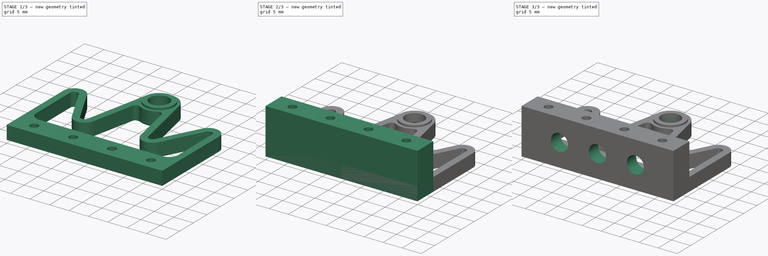
[diagram: build sequence overview — one tinted view per stage of 3, left to right]
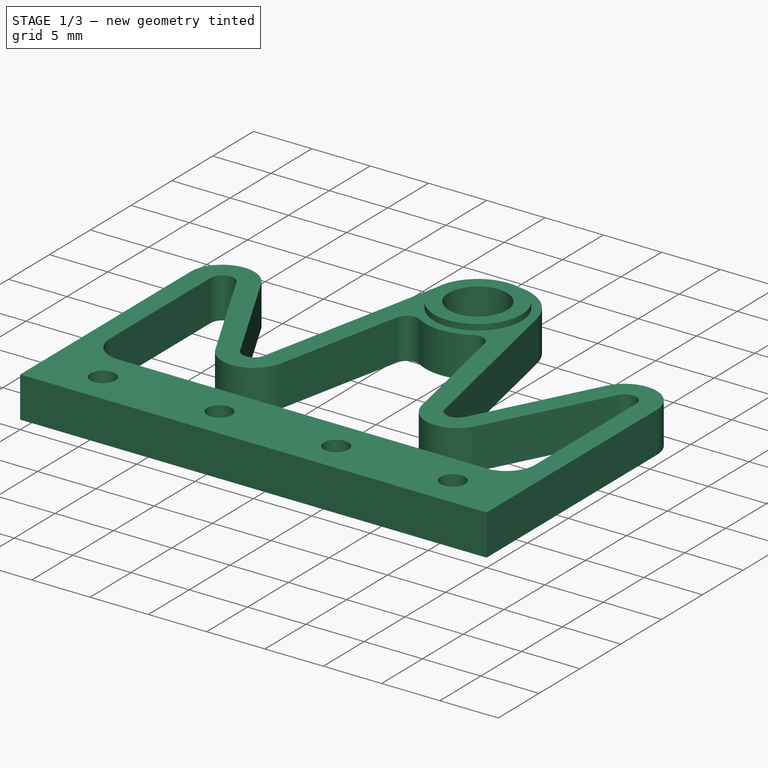
[diagram: stage 1 of 3 — iso view after this stage's code; geometry added in this stage tinted green]
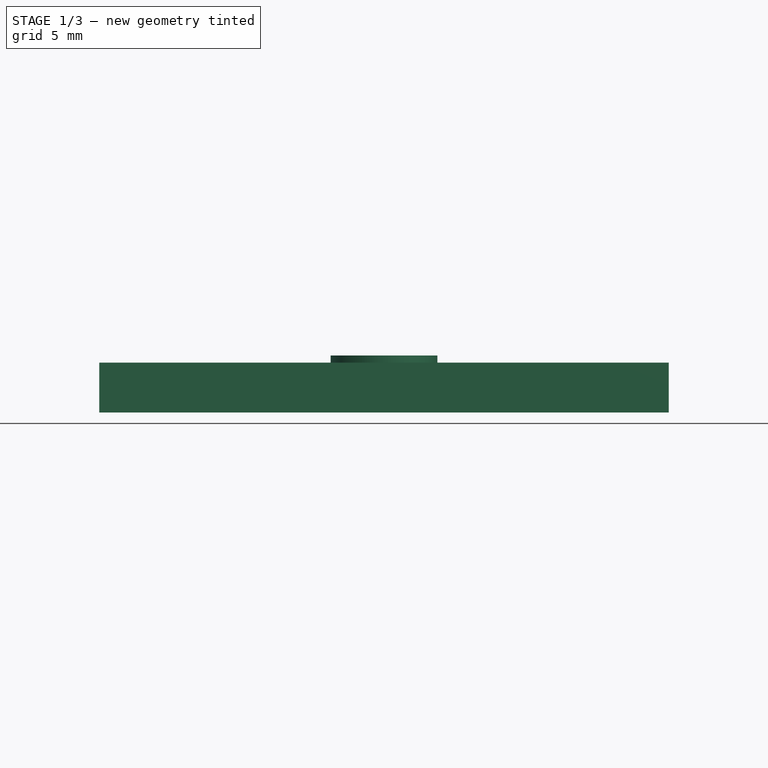
[diagram: stage 1 of 3 — front view after this stage's code; geometry added in this stage tinted green]
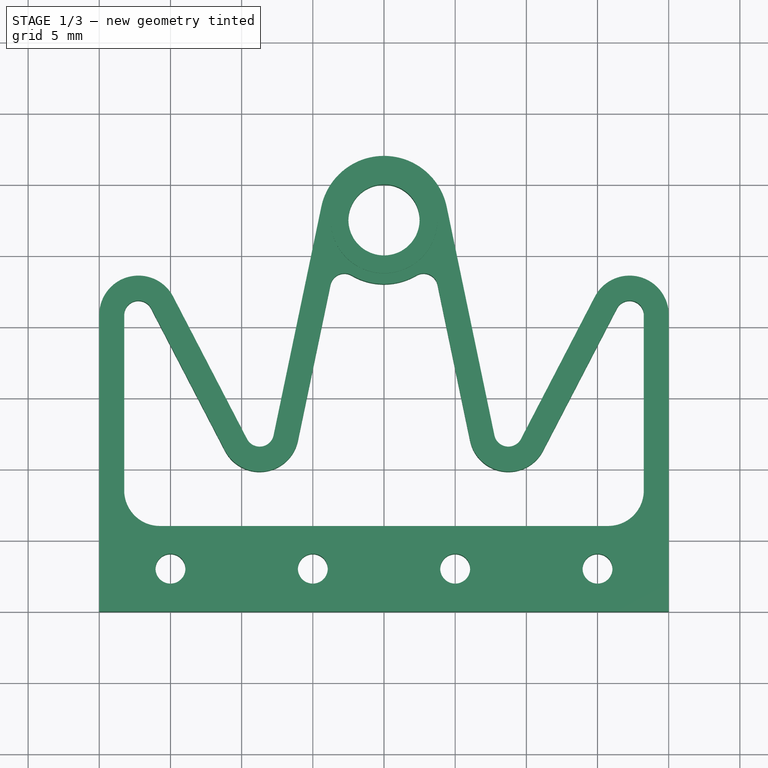
[diagram: stage 1 of 3 — top view after this stage's code; geometry added in this stage tinted green]
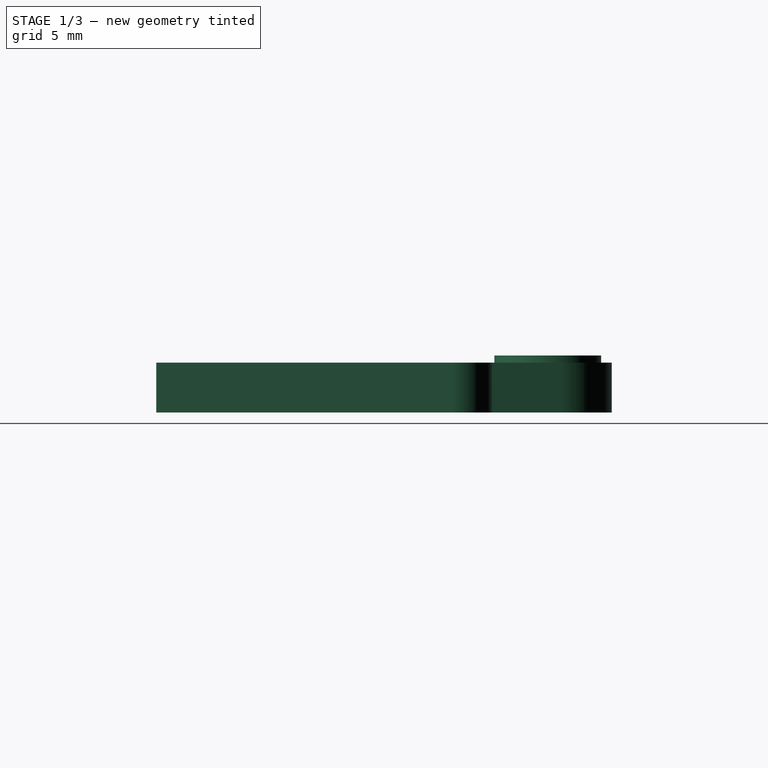
[diagram: stage 1 of 3 — right view after this stage's code; geometry added in this stage tinted green]
FCSTD DOCUMENT  (FreeCAD 0.19R23141 (Git))
Label: compliant_wheel
License: All rights reserved
LicenseURL: http://en.wikipedia.org/wiki/All_rights_reserved
objects: Sketcher::SketchObject×4, PartDesign::Pad×3, PartDesign::Body×2, PartDesign::Chamfer×2, PartDesign::Draft×1, PartDesign::Hole×1
note: 20 computed .brp shape members not serialized (recipe doc carries the construction recipe); baked Part::Feature solids carry a one-line shape summary decoded from their .brp

FEATURE [Sketcher::SketchObject] Sketch
  MapMode = 5
  Support = -> [XY_Plane]
  expr: Constraints[3] = 26 + 1.5
  sketch-geometry (46):
    g0: LineSegment StartX=0 StartY=0 StartZ=0 EndX=-20 EndY=0 EndZ=0
    g1: Circle CenterX=0 CenterY=27.5 CenterZ=0 NormalX=0 NormalY=0 NormalZ=1 AngleXU=0 Radius=2.5
    g2: LineSegment StartX=-7.75607 StartY=12.3702 StartZ=0 EndX=-4.405 EndY=28.4197 EndZ=0
    g3: ArcOfCircle CenterX=0 CenterY=27.5 CenterZ=0 NormalX=0 NormalY=0 NormalZ=1 AngleXU=0 Radius=4.5 StartAngle=0.205839 EndAngle=2.93575
    g4: LineSegment StartX=4.405 StartY=28.4197 StartZ=0 EndX=7.75607 EndY=12.3702 EndZ=0
    g5: LineSegment StartX=20 StartY=0 StartZ=0 EndX=0 EndY=0 EndZ=0
    g6: ArcOfCircle CenterX=0 CenterY=27.5 CenterZ=0 NormalX=0 NormalY=0 NormalZ=1 AngleXU=0 Radius=4.5 StartAngle=4.18274 EndAngle=5.24204
    g7: ArcOfCircle CenterX=2.77877 CenterY=22.7536 CenterZ=0 NormalX=0 NormalY=0 NormalZ=1 AngleXU=0 Radius=1 StartAngle=0.205839 EndAngle=2.10045
    g8: LineSegment StartX=3.75766 StartY=22.958 StartZ=0 EndX=6.04301 EndY=12.0126 EndZ=0
    g9: LineSegment [constr] StartX=-2.27354 StartY=23.6166 StartZ=0 EndX=2.27354 EndY=23.6166 EndZ=0
    g10: ArcOfCircle CenterX=-2.77877 CenterY=22.7536 CenterZ=0 NormalX=0 NormalY=0 NormalZ=1 AngleXU=0 Radius=1 StartAngle=1.04115 EndAngle=2.93575
    g11: LineSegment StartX=-3.75766 StartY=22.958 StartZ=0 EndX=-6.04301 EndY=12.0126 EndZ=0
    g12: LineSegment StartX=-9.62251 StartY=12.1139 StartZ=0 EndX=-14.8092 EndY=22.1059 EndZ=0
    g13: LineSegment StartX=-20 StartY=20.8389 StartZ=0 EndX=-20 EndY=0 EndZ=0
    g14: LineSegment StartX=-11.1757 StartY=11.3077 StartZ=0 EndX=-16.3625 EndY=21.2996 EndZ=0
    g15: LineSegment StartX=-18.25 StartY=20.8389 StartZ=0 EndX=-18.25 EndY=8.5 EndZ=0
    g16: LineSegment StartX=-15.75 StartY=6 StartZ=0 EndX=15.75 EndY=6 EndZ=0
    g17: LineSegment StartX=18.25 StartY=8.5 StartZ=0 EndX=18.25 EndY=20.8389 EndZ=0
    g18: LineSegment StartX=16.3625 StartY=21.2996 StartZ=0 EndX=11.1757 EndY=11.3077 EndZ=0
    g19: LineSegment StartX=9.62251 StartY=12.1139 StartZ=0 EndX=14.8092 EndY=22.1059 EndZ=0
    g20: LineSegment StartX=20 StartY=20.8389 StartZ=0 EndX=20 EndY=0 EndZ=0
    g21: ArcOfCircle CenterX=-17.25 CenterY=20.8389 CenterZ=0 NormalX=0 NormalY=0 NormalZ=1 AngleXU=0 Radius=2.75 StartAngle=0.478803 EndAngle=3.14159
    g22: ArcOfCircle CenterX=-8.73496 CenterY=12.5746 CenterZ=0 NormalX=0 NormalY=0 NormalZ=1 AngleXU=0 Radius=2.75 StartAngle=3.6204 EndAngle=6.07735
    g23: ArcOfCircle CenterX=8.73496 CenterY=12.5746 CenterZ=0 NormalX=0 NormalY=0 NormalZ=1 AngleXU=0 Radius=2.75 StartAngle=3.34743 EndAngle=5.80438
    g24: ArcOfCircle CenterX=17.25 CenterY=20.8389 CenterZ=0 NormalX=0 NormalY=0 NormalZ=1 AngleXU=0 Radius=2.75 StartAngle=1e-16 EndAngle=2.66279
    g25: ArcOfCircle CenterX=8.73496 CenterY=12.5746 CenterZ=0 NormalX=0 NormalY=0 NormalZ=1 AngleXU=0 Radius=1 StartAngle=3.34743 EndAngle=5.80438
    g26: ArcOfCircle CenterX=-8.73496 CenterY=12.5746 CenterZ=0 NormalX=0 NormalY=0 NormalZ=1 AngleXU=0 Radius=1 StartAngle=3.6204 EndAngle=6.07735
    g27: ArcOfCircle CenterX=-17.25 CenterY=20.8389 CenterZ=0 NormalX=0 NormalY=0 NormalZ=1 AngleXU=0 Radius=1 StartAngle=0.478803 EndAngle=3.14159
    g28: ArcOfCircle CenterX=17.25 CenterY=20.8389 CenterZ=0 NormalX=0 NormalY=0 NormalZ=1 AngleXU=0 Radius=1 StartAngle=3e-16 EndAngle=2.66279
    g29: LineSegment [constr] StartX=-17.25 StartY=20.8389 StartZ=0 EndX=0 EndY=20.8389 EndZ=0
    g30: LineSegment [constr] StartX=17.25 StartY=20.8389 StartZ=0 EndX=0 EndY=20.8389 EndZ=0
    g31: LineSegment [constr] StartX=-8.73496 StartY=12.5746 StartZ=0 EndX=0 EndY=12.5746 EndZ=0
    g32: LineSegment [constr] StartX=8.73496 StartY=12.5746 StartZ=0 EndX=0 EndY=12.5746 EndZ=0
    g33: ArcOfCircle CenterX=-15.75 CenterY=8.5 CenterZ=0 NormalX=0 NormalY=0 NormalZ=1 AngleXU=0 Radius=2.5 StartAngle=3.14159 EndAngle=4.71239
    g34: ArcOfCircle CenterX=15.75 CenterY=8.5 CenterZ=0 NormalX=0 NormalY=0 NormalZ=1 AngleXU=0 Radius=2.5 StartAngle=4.71239 EndAngle=6.28319
    g35: LineSegment [constr] StartX=0 StartY=3 StartZ=0 EndX=-5 EndY=3 EndZ=0
    g36: LineSegment [constr] StartX=-5 StartY=3 StartZ=0 EndX=-10 EndY=3 EndZ=0
    g37: LineSegment [constr] StartX=-10 StartY=3 StartZ=0 EndX=-15 EndY=3 EndZ=0
    g38: LineSegment [constr] StartX=0 StartY=3 StartZ=0 EndX=5 EndY=3 EndZ=0
    g39: LineSegment [constr] StartX=5 StartY=3 StartZ=0 EndX=10 EndY=3 EndZ=0
    g40: LineSegment [constr] StartX=10 StartY=3 StartZ=0 EndX=15 EndY=3 EndZ=0
    g41: Circle CenterX=-15 CenterY=3 CenterZ=0 NormalX=0 NormalY=0 NormalZ=1 AngleXU=0 Radius=1.05
    g42: Circle CenterX=-5 CenterY=3 CenterZ=0 NormalX=0 NormalY=0 NormalZ=1 AngleXU=0 Radius=1.05
    g43: Circle CenterX=5 CenterY=3 CenterZ=0 NormalX=0 NormalY=0 NormalZ=1 AngleXU=0 Radius=1.05
    g44: Circle CenterX=15 CenterY=3 CenterZ=0 NormalX=0 NormalY=0 NormalZ=1 AngleXU=0 Radius=1.05
    g45: Circle [constr] CenterX=0 CenterY=27.5 CenterZ=0 NormalX=0 NormalY=0 NormalZ=1 AngleXU=0 Radius=12.25
  constraints (108):
    c: Coincident(g-1,g0)
    c: PointOnObject(g0,g-1)
    c: PointOnObject(g1,g-2)
    c: DistanceY(g0,g1) = 27.5
    c: Coincident(g3,g1)
    c: Tangent(g3,g2) = 1.5708
    c: Tangent(g3,g4) = 1.5708
    c: PointOnObject(g5,g-1)
    c: Coincident(g5,g0)
    c: Equal(g5,g0)
    c: Coincident(g6,g1)
    c: Tangent(g7,g6) = 1.5708
    c: Equal(g6,g3)
    c: Tangent(g7,g8) = 1.5708
    c: Diameter(g6) = 9
    c: Coincident(g9,g6)
    c: Coincident(g9,g6)
    c: Horizontal(g9)
    c: Tangent(g10,g11) = -1.5708
    c: Tangent(g10,g6) = 1.5708
    c: Equal(g10,g7)
    c: Diameter(g10) = 2
    c: Coincident(g13,g0)
    c: Horizontal(g16)
    c: Coincident(g20,g5)
    c: Tangent(g13,g21) = -1.5708
    c: Tangent(g12,g21) = -1.5708
    c: Tangent(g14,g22) = 1.5708
    c: Tangent(g11,g22) = 1.5708
    c: Tangent(g8,g23) = -1.5708
    c: Tangent(g18,g23) = 1.5708
    c: Tangent(g19,g24) = 1.5708
    c: Tangent(g20,g24) = 1.5708
    c: Tangent(g4,g25) = -1.5708
    c: Tangent(g19,g25) = -1.5708
    c: Tangent(g12,g26) = 1.5708
    c: Tangent(g2,g26) = -1.5708
    c: Tangent(g15,g27) = -1.5708
    c: Tangent(g14,g27) = -1.5708
    c: Tangent(g18,g28) = -1.5708
    c: Tangent(g17,g28) = -1.5708
    c: Equal(g7,g28)
    c: Equal(g28,g26)
    c: Equal(g26,g27)
    c: Equal(g27,g25)
    c: Diameter(g21) = 5.5
    c: Equal(g21,g22)
    c: Equal(g21,g23)
    c: Equal(g21,g24)
    c: Parallel(g8,g4)
    c: Parallel(g17,g20)
    c: Parallel(g15,g13)
    c: Parallel(g11,g2)
    c: Coincident(g21,g27)
    c: Coincident(g26,g22)
    c: Coincident(g24,g28)
    c: Coincident(g25,g23)
    c: Equal(g15,g17)
    c: Coincident(g29,g21)
    c: PointOnObject(g29,g-2)
    c: Horizontal(g29)
    c: Coincident(g30,g24)
    c: Coincident(g30,g29)
    c: Horizontal(g30)
    c: Coincident(g31,g22)
    c: PointOnObject(g31,g-2)
    c: Coincident(g32,g23)
    c: Coincident(g32,g31)
    c: Horizontal(g32)
    c: Horizontal(g31)
    c: Vertical(g13)
    c: Tangent(g16,g33) = -1.5708
    c: Tangent(g15,g33) = -1.5708
    c: Tangent(g16,g34) = -1.5708
    c: Tangent(g17,g34) = -1.5708
    c: DistanceY(g0,g16) = 6
    c: PointOnObject(g35,g-2)
    c: Horizontal(g35)
    c: Coincident(g35,g36)
    c: Coincident(g36,g37)
    c: Horizontal(g37)
    c: Coincident(g35,g38)
    c: Horizontal(g38)
    c: Coincident(g38,g39)
    c: Horizontal(g39)
    c: Coincident(g39,g40)
    c: Horizontal(g40)
    c: Horizontal(g36)
    c: Equal(g36,g37)
    c: Equal(g37,g35)
    c: Equal(g35,g38)
    c: Equal(g38,g39)
    c: Equal(g39,g40)
    c: DistanceY(g0,g37) = 3
    c: DistanceX(g35,g35) = 5
    c: Coincident(g41,g37)
    c: Coincident(g42,g35)
    c: Coincident(g43,g38)
    c: Coincident(g44,g40)
    c: Equal(g44,g43)
    c: Equal(g43,g42)
    c: Equal(g42,g41)
    c: Diameter(g41) = 2.1
    c: DistanceX(g0,g5) = 40
    c: Coincident(g45,g1)
    c: Diameter(g45) = 24.5
    c: Equal(g34,g33)
    c: Diameter(g33) = 5
FEATURE [PartDesign::Pad] Pad
  Direction = (1,1,1)
  Length = 3.5
  Length2 = 100
  Profile = -> Sketch
  Type = 0
FEATURE [Sketcher::SketchObject] Sketch001
  ExternalGeometry = -> [Pad]
  MapMode = 5
  Placement = pos=(0,0,3.5) rot=(0,0,1;0rad)
  Support = -> [Pad]
  sketch-geometry (2):
    g0: Circle CenterX=0 CenterY=27.5 CenterZ=0 NormalX=0 NormalY=0 NormalZ=1 AngleXU=0 Radius=2.5
    g1: Circle CenterX=0 CenterY=27.5 CenterZ=0 NormalX=0 NormalY=0 NormalZ=1 AngleXU=0 Radius=3.75
  constraints (4):
    c: Coincident(g0,g-3)
    c: Coincident(g1,g0)
    c: Diameter(g1) = 7.5
    c: Radius(g0) = 2.5
FEATURE [PartDesign::Pad] Pad001
  BaseFeature = -> Pad
  Direction = (1,1,1)
  Length = 0.5
  Length2 = 100
  Profile = -> Sketch001
  Type = 0
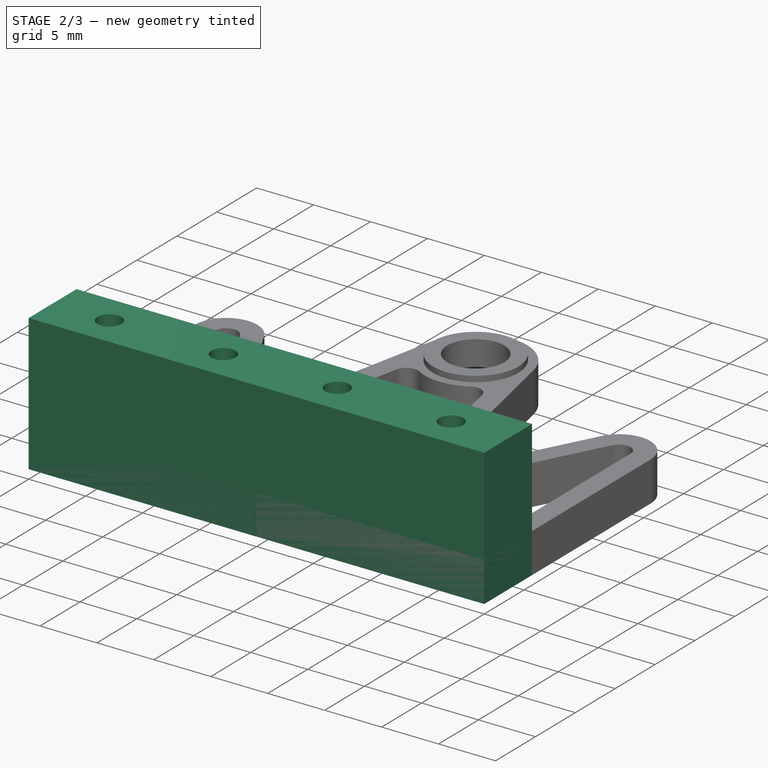
[diagram: stage 2 of 3 — iso view after this stage's code; geometry added in this stage tinted green]
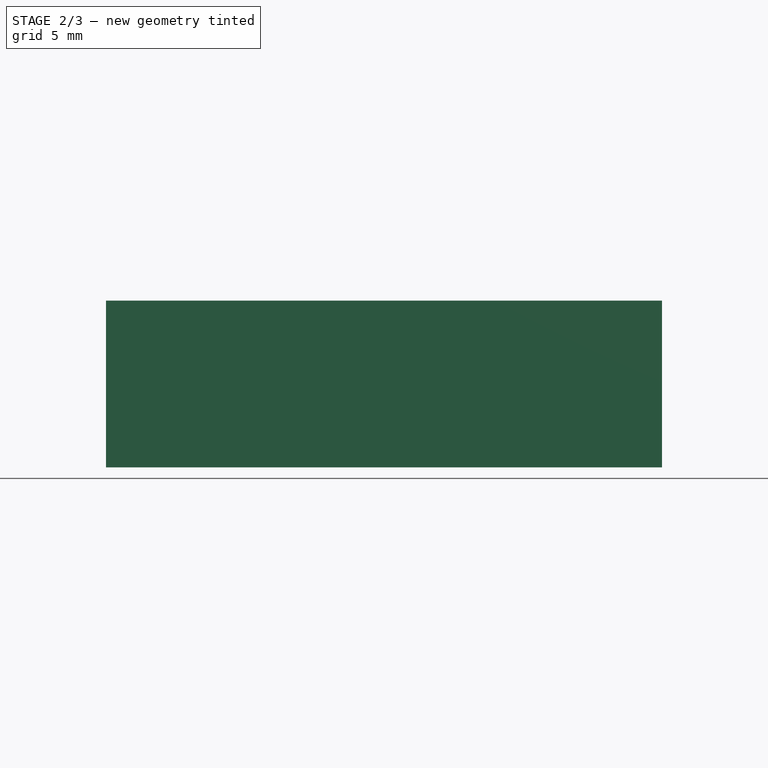
[diagram: stage 2 of 3 — front view after this stage's code; geometry added in this stage tinted green]
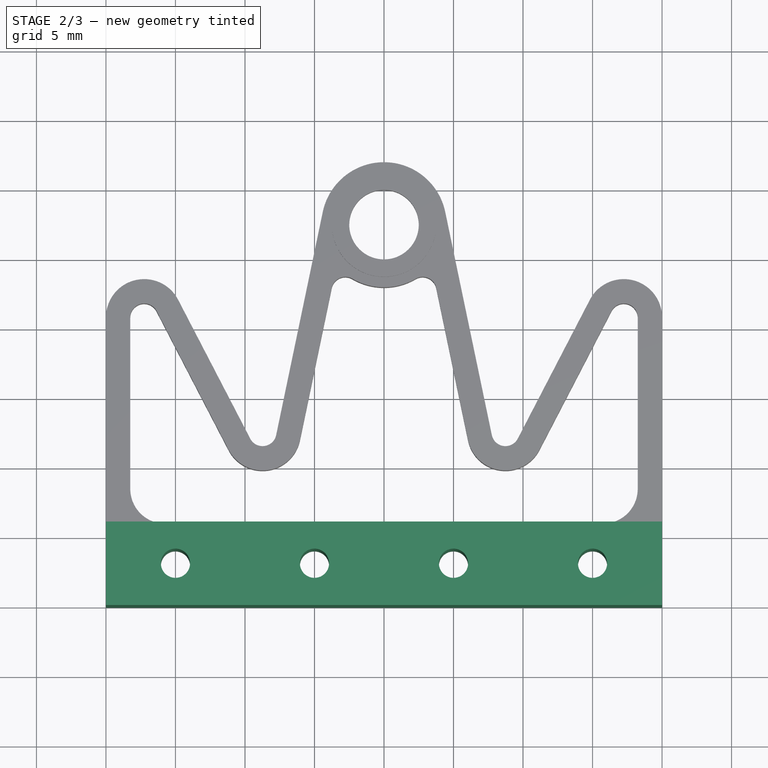
[diagram: stage 2 of 3 — top view after this stage's code; geometry added in this stage tinted green]
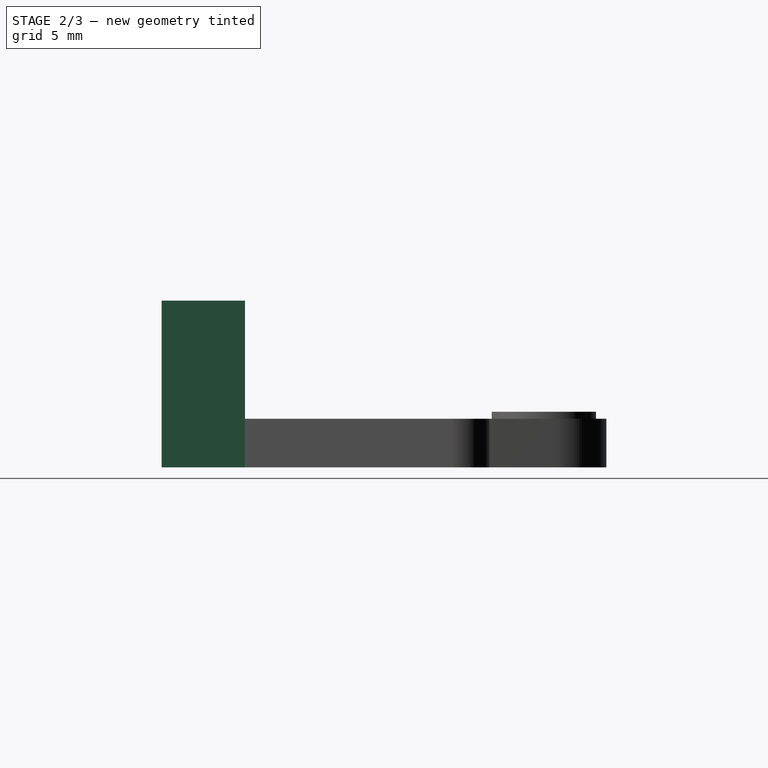
[diagram: stage 2 of 3 — right view after this stage's code; geometry added in this stage tinted green]
FEATURE [Sketcher::SketchObject] Sketch002
  MapMode = 5
  Support = -> [XY_Plane001]
  sketch-geometry (16):
    g0: LineSegment StartX=-20 StartY=0 StartZ=0 EndX=20 EndY=0 EndZ=0
    g1: LineSegment StartX=20 StartY=0 StartZ=0 EndX=20 EndY=6 EndZ=0
    g2: LineSegment StartX=20 StartY=6 StartZ=0 EndX=-20 EndY=6 EndZ=0
    g3: LineSegment StartX=-20 StartY=6 StartZ=0 EndX=-20 EndY=0 EndZ=0
    g4: LineSegment [constr] StartX=-20 StartY=6 StartZ=0 EndX=0 EndY=0 EndZ=0
    g5: LineSegment [constr] StartX=0 StartY=0 StartZ=0 EndX=20 EndY=6 EndZ=0
    g6: LineSegment [constr] StartX=0 StartY=3 StartZ=0 EndX=-5 EndY=3 EndZ=0
    g7: LineSegment [constr] StartX=-5 StartY=3 StartZ=0 EndX=-10 EndY=3 EndZ=0
    g8: LineSegment [constr] StartX=-10 StartY=3 StartZ=0 EndX=-15 EndY=3 EndZ=0
    g9: LineSegment [constr] StartX=0 StartY=3 StartZ=0 EndX=5 EndY=3 EndZ=0
    g10: LineSegment [constr] StartX=5 StartY=3 StartZ=0 EndX=10 EndY=3 EndZ=0
    g11: LineSegment [constr] StartX=10 StartY=3 StartZ=0 EndX=15 EndY=3 EndZ=0
    g12: Circle CenterX=-15 CenterY=3 CenterZ=0 NormalX=0 NormalY=0 NormalZ=1 AngleXU=0 Radius=1.05
    g13: Circle CenterX=-5 CenterY=3 CenterZ=0 NormalX=0 NormalY=0 NormalZ=1 AngleXU=0 Radius=1.05
    g14: Circle CenterX=5 CenterY=3 CenterZ=0 NormalX=0 NormalY=0 NormalZ=1 AngleXU=0 Radius=1.05
    g15: Circle CenterX=15 CenterY=3 CenterZ=0 NormalX=0 NormalY=0 NormalZ=1 AngleXU=0 Radius=1.05
  constraints (43):
    c: Coincident(g0,g1)
    c: Coincident(g1,g2)
    c: Coincident(g2,g3)
    c: Coincident(g3,g0)
    c: Horizontal(g0)
    c: Horizontal(g2)
    c: Vertical(g1)
    c: Vertical(g3)
    c: PointOnObject(g0,g-1)
    c: DistanceY(g3,g3) = 6
    c: DistanceX(g0,g0) = 40
    c: Coincident(g2,g4)
    c: Coincident(g4,g-1)
    c: Coincident(g4,g5)
    c: Coincident(g5,g1)
    c: Equal(g5,g4)
    c: PointOnObject(g6,g-2)
    c: Coincident(g6,g7)
    c: Coincident(g7,g8)
    c: Coincident(g6,g9)
    c: Coincident(g9,g10)
    c: Coincident(g10,g11)
    c: Horizontal(g11)
    c: Horizontal(g10)
    c: Horizontal(g9)
    c: Horizontal(g6)
    c: Horizontal(g7)
    c: Horizontal(g8)
    c: Equal(g11,g10)
    c: Equal(g10,g9)
    c: Equal(g9,g6)
    c: Equal(g6,g7)
    c: Equal(g7,g8)
    c: DistanceX(g6,g6) = 5
    c: Coincident(g12,g8)
    c: Coincident(g13,g6)
    c: Coincident(g14,g9)
    c: Coincident(g15,g11)
    c: Diameter(g14) = 2.1
    c: Equal(g14,g15)
    c: Equal(g14,g13)
    c: Equal(g14,g12)
    c: DistanceY(g-1,g12) = 3
FEATURE [PartDesign::Pad] Pad002
  Direction = (1,1,1)
  Length = 12
  Length2 = 100
  Profile = -> Sketch002
  Type = 0
FEATURE [PartDesign::Body] Body001
  Group = -> [Sketch002,Pad002,Sketch003,Hole]
  Origin = -> Origin001
  Placement = pos=(0,0,3.5) rot=(0,0,1;0rad)
  Tip = -> Hole
FEATURE [PartDesign::Chamfer] Chamfer
  Angle = 45
  Base = -> Pad001 [Edge38,Edge40,Edge41,Edge39]
  BaseFeature = -> Pad001
  ChamferType = 0
  FlipDirection = false
  Size = 1
  Size2 = 1
  SupportTransform = false
FEATURE [PartDesign::Chamfer] Chamfer001
  Angle = 45
  Base = -> Chamfer [Edge31]
  BaseFeature = -> Chamfer
  ChamferType = 0
  FlipDirection = false
  Size = 1.8
  Size2 = 1
  SupportTransform = false
FEATURE [PartDesign::Body] Body
  Group = -> [Sketch,Pad,Sketch001,Pad001,Draft,Chamfer,Chamfer001]
  Origin = -> Origin
  Tip = -> Chamfer001
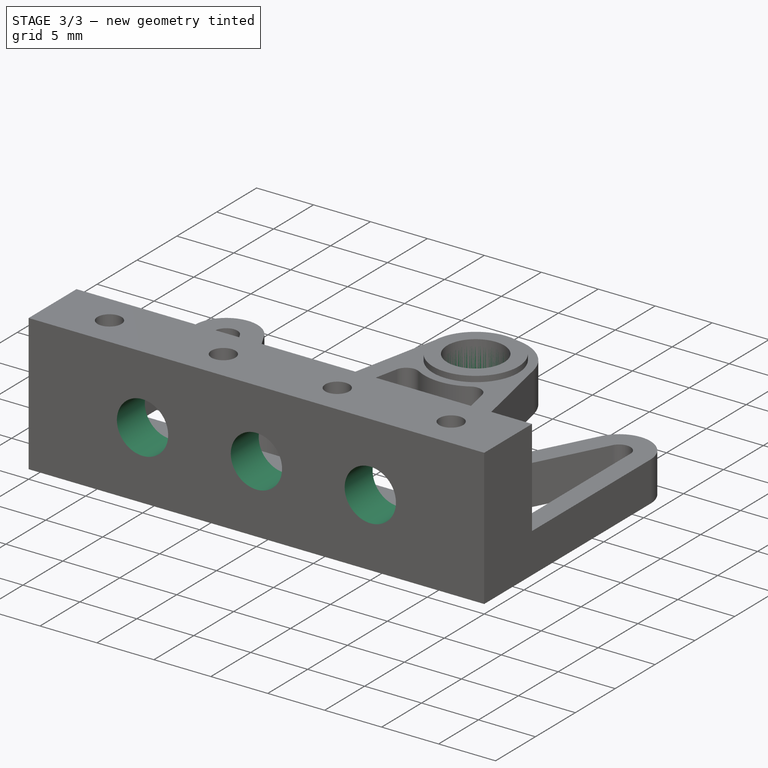
[diagram: stage 3 of 3 — iso view after this stage's code; geometry added in this stage tinted green]
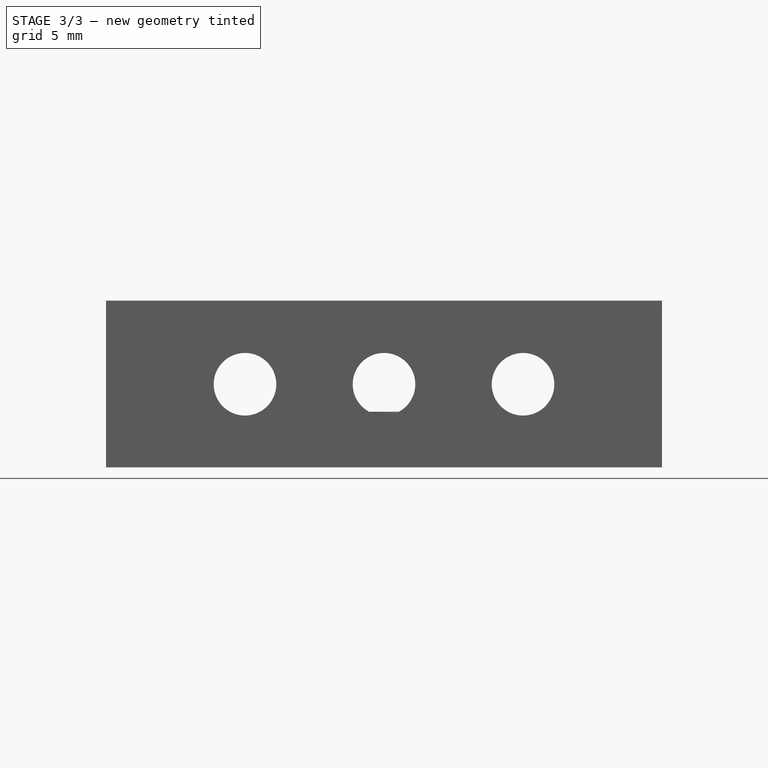
[diagram: stage 3 of 3 — front view after this stage's code; geometry added in this stage tinted green]
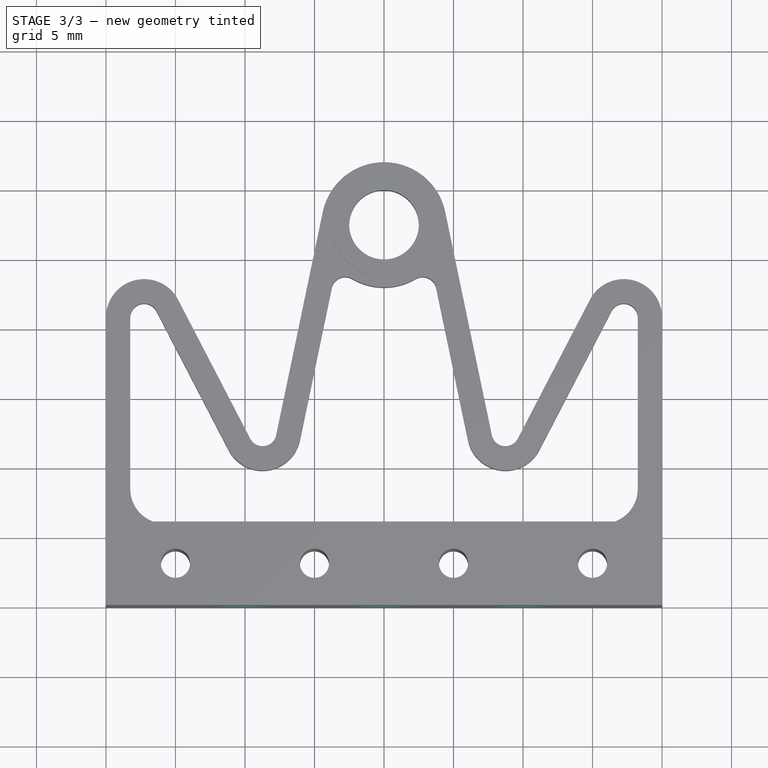
[diagram: stage 3 of 3 — top view after this stage's code; geometry added in this stage tinted green]
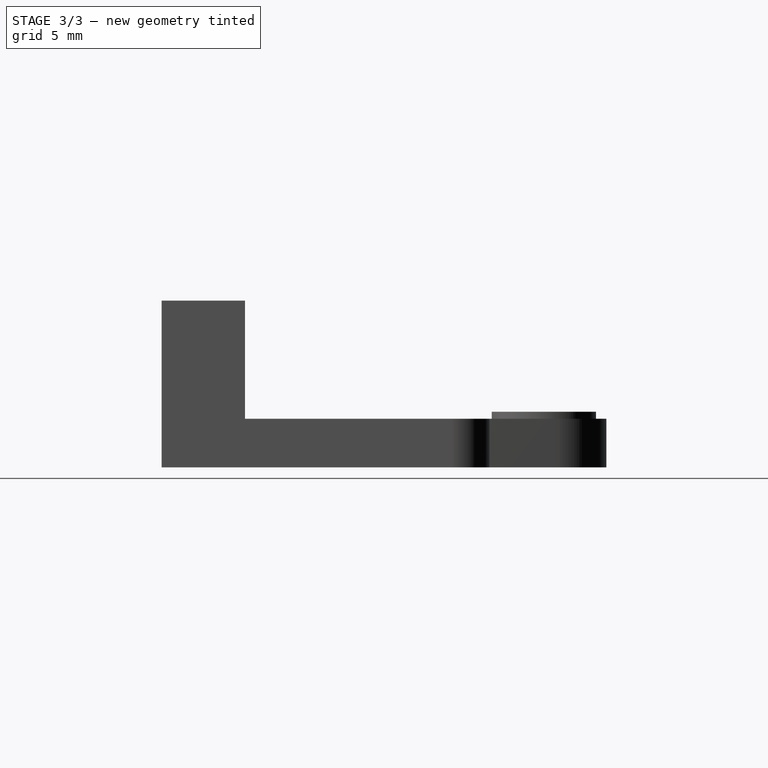
[diagram: stage 3 of 3 — right view after this stage's code; geometry added in this stage tinted green]
FEATURE [PartDesign::Draft] Draft
  Angle = 20
  Base = -> Pad001 [Face37]
  BaseFeature = -> Pad001
  NeutralPlane = -> Pad001 [Face5]
  Reversed = true
  SupportTransform = false
FEATURE [Sketcher::SketchObject] Sketch003
  ExternalGeometry = -> [Pad002]
  MapMode = 5
  Placement = pos=(0,6,0) rot=(0,0.707107,0.707107;3.14159rad)
  Support = -> [Pad002]
  sketch-geometry (7):
    g0: Circle CenterX=-10 CenterY=5.98197 CenterZ=0 NormalX=0 NormalY=0 NormalZ=1 AngleXU=0 Radius=2
    g1: Circle CenterX=0 CenterY=5.98197 CenterZ=0 NormalX=0 NormalY=0 NormalZ=1 AngleXU=0 Radius=2
    g2: Circle CenterX=10 CenterY=5.98197 CenterZ=0 NormalX=0 NormalY=0 NormalZ=1 AngleXU=0 Radius=2
    g3: LineSegment [constr] StartX=-10 StartY=5.98197 StartZ=0 EndX=-5 EndY=5.98197 EndZ=0
    g4: LineSegment [constr] StartX=-5 StartY=5.98197 StartZ=0 EndX=0 EndY=5.98197 EndZ=0
    g5: LineSegment [constr] StartX=0 StartY=5.98197 StartZ=0 EndX=5 EndY=5.98197 EndZ=0
    g6: LineSegment [constr] StartX=5 StartY=5.98197 StartZ=0 EndX=10 EndY=5.98197 EndZ=0
  constraints (18):
    c: PointOnObject(g1,g-2)
    c: Coincident(g3,g0)
    c: Coincident(g3,g4)
    c: Coincident(g4,g1)
    c: Coincident(g4,g5)
    c: Coincident(g5,g6)
    c: Coincident(g6,g2)
    c: Horizontal(g6)
    c: Horizontal(g5)
    c: Horizontal(g4)
    c: Horizontal(g3)
    c: Equal(g3,g4)
    c: Equal(g4,g5)
    c: Equal(g5,g6)
    c: DistanceX(g5,g5) = 5
    c: Diameter(g0) = 4
    c: Equal(g0,g1)
    c: Equal(g0,g2)
FEATURE [PartDesign::Hole] Hole
  BaseFeature = -> Pad002
  Depth = 25
  DepthType = 0
  Diameter = 4.5
  DrillPoint = 1
  DrillPointAngle = 118
  HoleCutCountersinkAngle = 90
  HoleCutDepth = 0
  HoleCutDiameter = 9.5
  HoleCutType = 2
  ModelActualThread = false
  Profile = -> Sketch003
  Tapered = false
  TaperedAngle = 90
  ThreadAngle = 0
  ThreadClass = 0
  ThreadCutOffInner = 0
  ThreadCutOffOuter = 0
  ThreadDirection = 0
  ThreadFit = 0
  ThreadPitch = 0
  ThreadSize = 0
  ThreadType = 0
  Threaded = false
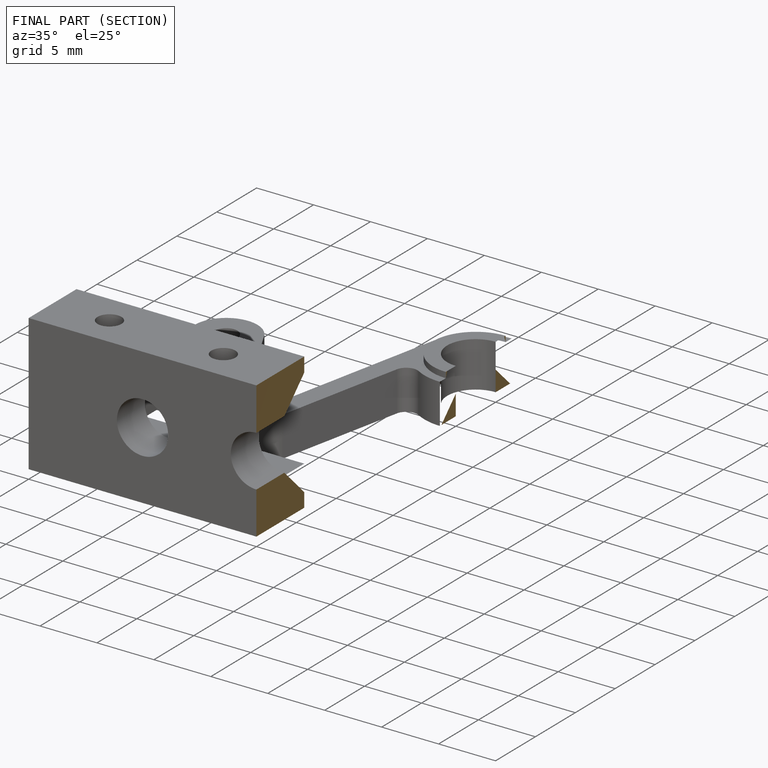
[diagram: finished part — half-section view (interior)]
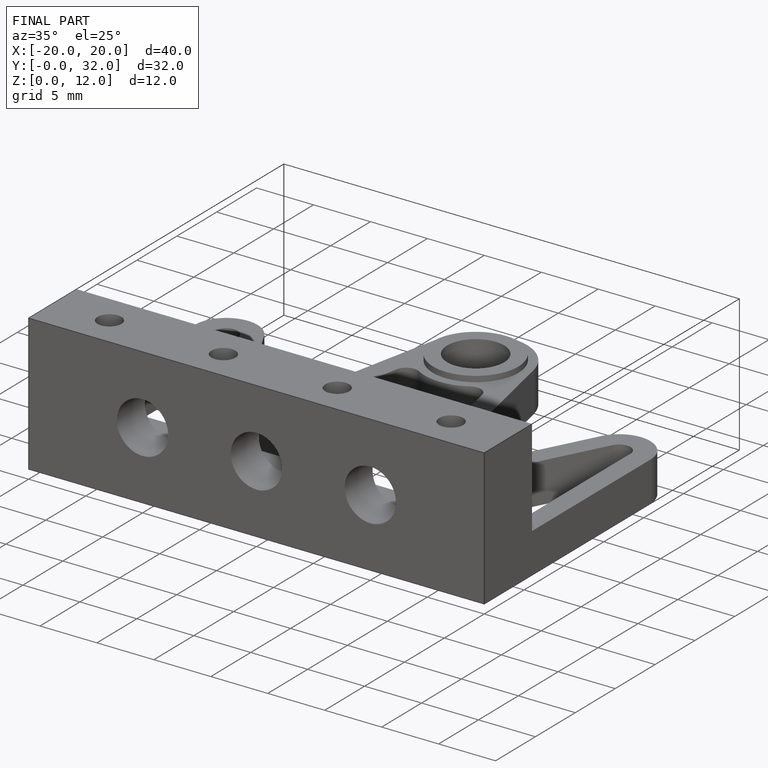
[diagram: finished part — iso view with bounding-box wireframe]
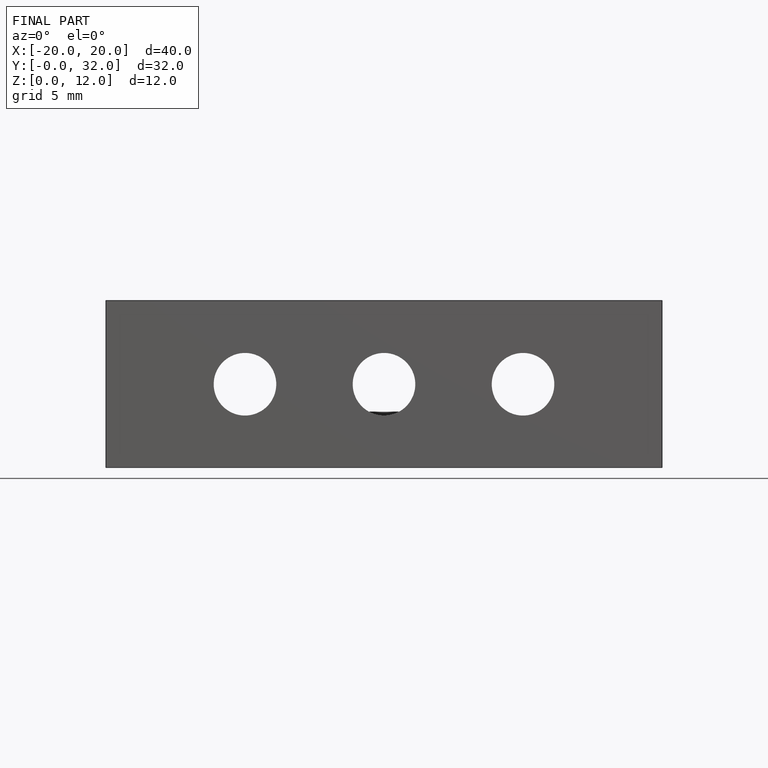
[diagram: finished part — front view with bounding-box wireframe]
